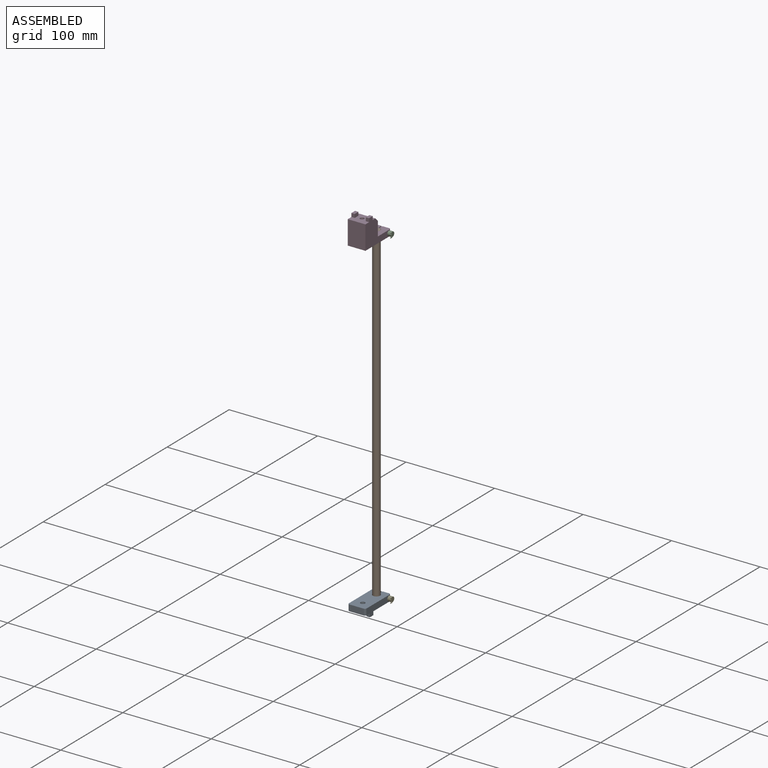
[diagram: assembled view]
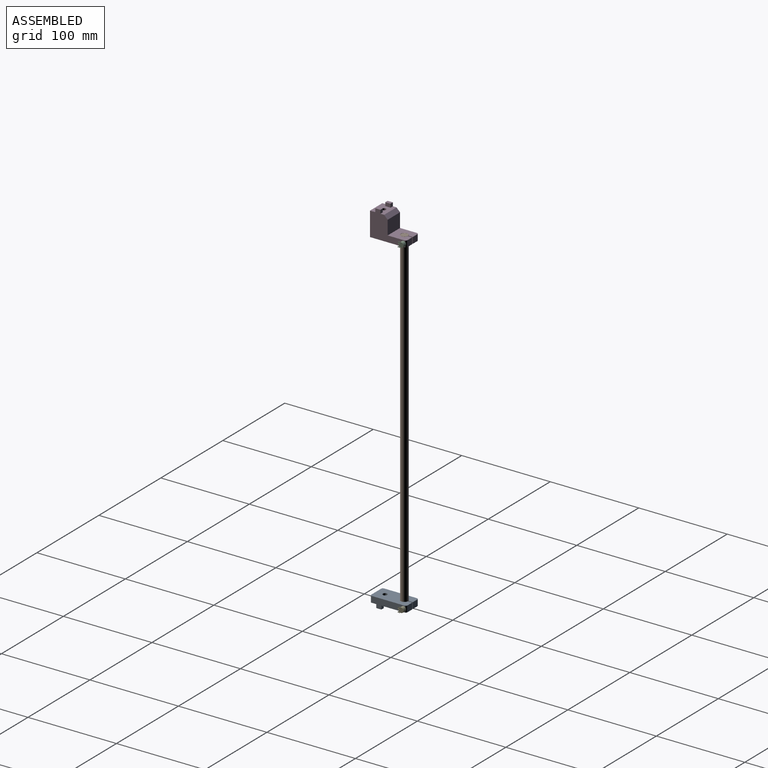
[diagram: assembled view, second angle]
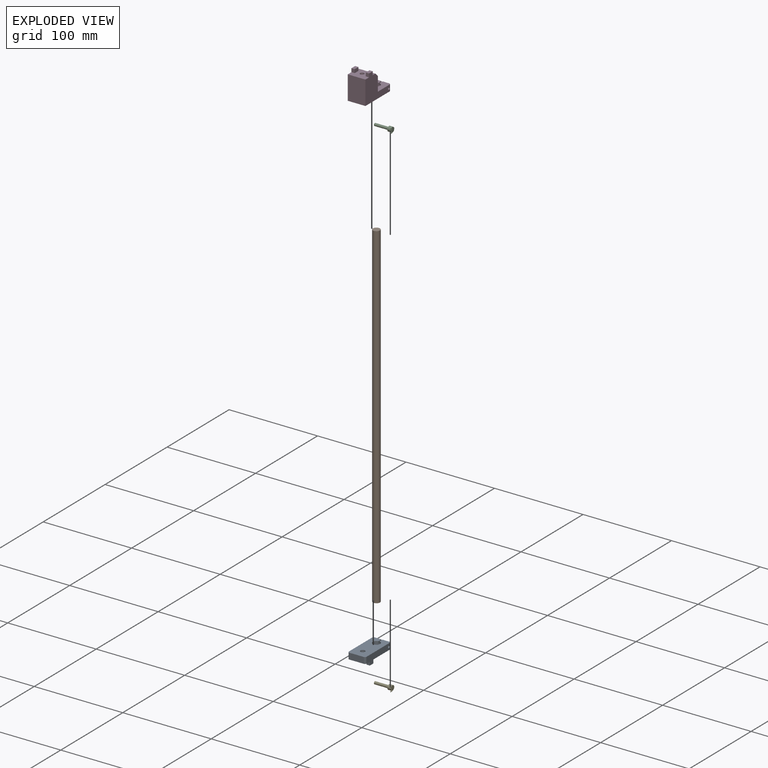
[diagram: exploded view]
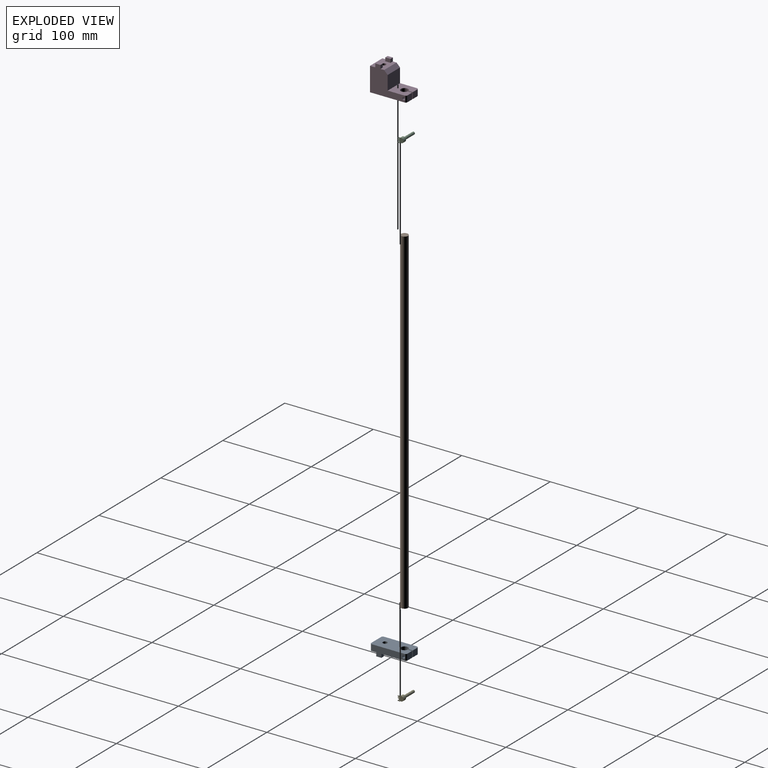
[diagram: exploded view, second angle]
ASSEMBLY  parts=5 mates=4
PART A: 25 faces, bbox 20x41x11 mm
  f0: plane 41x20mm, normal (0,0,1), area 694.2mm2, adj f1,f2,f3,f4,f5,f6,f7,f8
  f1: plane 16x7mm, normal (0,1,0), area 112mm2, adj f0,f10,f21,f24
  f2: plane 37x11mm, normal (-1,0,0), area 276.4mm2, adj f0,f10,f11,f13,f14,f20,f21,f22
  f3: plane 7.5x7mm, normal (0,-1,0), area 52.5mm2, adj f0,f4,f10,f22
  f4: plane 7x4.88mm, normal (1,0,0), area 27.6mm2, adj f0,f3,f5,f10,f20
  f5: cylinder r=4.15mm len=8.3mm, axis (0,0,-1), area 175.5mm2, adj f0,f4,f6,f10
  f6: plane 7x4.88mm, normal (-1,0,0), area 27.6mm2, adj f0,f5,f7,f10,f19
  f7: plane 7.5x7mm, normal (0,-1,0), area 52.5mm2, adj f0,f6,f10,f23
  f8: cylinder r=2.52mm len=7mm, axis (0,0,-1), area 110.8mm2, adj f0,f10
  f9: plane 37x11mm, normal (1,0,0), area 276.4mm2, adj f0,f10,f15,f16,f18,f19,f23,f24
  f10: plane 41x20mm, normal (0,0,-1), area 737.7mm2, adj f1,f2,f3,f4,f5,f6,f7,f8
  f11: plane 4x3.75mm, normal (0,-1,0), area 15mm2, adj f0,f2,f12,f14
  f12: plane 5.8x4mm, normal (1,0,0), area 23.2mm2, adj f0,f11,f13,f14
  f13: plane 4x3.75mm, normal (0,1,0), area 15mm2, adj f0,f2,f12,f14
  f14: plane 5.8x3.75mm, normal (0,0,1), area 21.7mm2, adj f2,f11,f12,f13
  f15: plane 4x3.75mm, normal (0,-1,0), area 15mm2, adj f0,f9,f17,f18
  f16: plane 4x3.75mm, normal (0,1,0), area 15mm2, adj f0,f9,f17,f18
  f17: plane 5.8x4mm, normal (-1,0,0), area 23.2mm2, adj f0,f15,f16,f18
  f18: plane 5.8x3.75mm, normal (0,0,1), area 21.7mm2, adj f9,f15,f16,f17
  f19: cylinder r=1.45mm len=9.5mm, axis (1,0,0), area 86.5mm2, adj f6,f9,f23
  f20: cylinder r=1.45mm len=9.5mm, axis (1,0,0), area 86.5mm2, adj f2,f4,f22
  f21: cylinder r=2mm len=7mm, axis (0,0,-1), area 22mm2, adj f0,f1,f2,f10
  f22: cylinder r=2mm len=7mm, axis (0,0,1), area 21.2mm2, adj f0,f2,f3,f10,f20
  f23: cylinder r=2mm len=7mm, axis (0,0,-1), area 21.2mm2, adj f0,f7,f9,f10,f19
  f24: cylinder r=2mm len=7mm, axis (0,0,1), area 22mm2, adj f0,f1,f9,f10
PART B: 3 faces, bbox 8x8x380 mm
  f0: cylinder r=4mm len=380mm, axis (0,0,-1), area 9550.4mm2, adj f1,f2
  f1: plane 8x8mm, normal (0,0,1), area 50.3mm2, adj f0
  f2: plane 8x8mm, normal (0,0,-1), area 50.3mm2, adj f0
PART C: 79 faces, bbox 6x6.3x20.5 mm
  f0: plane 0.44x0.4mm, normal (0,0,1), area 0.1mm2, adj f2,f68,f69,f70,f71
  f1: plane 5.5x5.5mm, normal (0,0,1), area 21.8mm2, adj f2,f28,f29,f30,f35,f36,f37,f38
  f2: cylinder r=2.75mm len=5.5mm, axis (0,0,-1), area 69.1mm2, adj f0,f1,f3,f6,f51,f78
  f3: plane 5.5x5.5mm, normal (0,0,-1), area 16.7mm2, adj f2,f4
  f4: cylinder r=1.5mm len=16mm, axis (0,0,1), area 150.8mm2, adj f3,f5
  f5: plane 3x3mm, normal (0,0,-1), area 7.1mm2, adj f4
  f6: plane 2.26x1.46mm, normal (0,0,-1), area 1.5mm2, adj f2,f7,f8,f9,f10,f11,f12,f13
  f7: extruded ~0.5x0.35mm, area 0.2mm2, adj f6,f8,f33,f34
  f8: extruded ~0.5x0.38mm, area 0.2mm2, adj f6,f7,f9,f34
  f9: extruded ~0.54x0.5mm, area 0.3mm2, adj f6,f8,f10,f34
  f10: extruded ~0.72x0.5mm, area 0.4mm2, adj f6,f9,f11,f34
  f11: plane 0.5x0.32mm, normal (-0.83,-0.56,0), area 0.2mm2, adj f6,f10,f12,f34
  f12: extruded ~0.5x0.25mm, area 0.1mm2, adj f6,f11,f13,f34
  f13: extruded ~0.5x0.22mm, area 0.1mm2, adj f6,f12,f14,f34
  f14: extruded ~0.5x0.31mm, area 0.2mm2, adj f6,f13,f15,f34
  f15: extruded ~0.5x0.23mm, area 0.1mm2, adj f6,f14,f16,f34
  f16: extruded ~0.5x0.37mm, area 0.2mm2, adj f6,f15,f17,f34
  f17: plane 0.5x0.17mm, normal (0,1,0), area 0.1mm2, adj f6,f16,f18,f34
  f18: plane 0.5x0.36mm, normal (-1,0,0), area 0.2mm2, adj f6,f17,f19,f34
  f19: plane 0.5x0.17mm, normal (0,-1,0), area 0.1mm2, adj f6,f18,f20,f34
  f20: extruded ~0.5x0.4mm, area 0.2mm2, adj f6,f19,f21,f34
  f21: extruded ~0.5x0.22mm, area 0.1mm2, adj f6,f20,f22,f34
  f22: extruded ~0.5x0.25mm, area 0.1mm2, adj f6,f21,f23,f34
  f23: extruded ~0.5x0.34mm, area 0.2mm2, adj f6,f22,f24,f34
  f24: extruded ~0.5x0.3mm, area 0.2mm2, adj f6,f23,f25,f34
  f25: extruded ~0.5x0.28mm, area 0.2mm2, adj f6,f24,f26,f34
  f26: plane 0.5x0.4mm, normal (-1,0,0), area 0.2mm2, adj f6,f25,f27,f34
  f27: extruded ~0.63x0.5mm, area 0.3mm2, adj f6,f26,f28,f34
  f28: extruded ~0.66x0.5mm, area 0.3mm2, adj f1,f6,f27,f29,f34
  f29: extruded ~0.5x0.49mm, area 0.3mm2, adj f1,f28,f30,f34
  f30: extruded ~0.5x0.35mm, area 0.2mm2, adj f1,f6,f29,f31,f34
  f31: extruded ~0.5x0.4mm, area 0.2mm2, adj f6,f30,f32,f34
  f32: plane 0.5x0.01mm, normal (1,0,0), area 0mm2, adj f6,f31,f33,f34
  f33: extruded ~0.5x0.35mm, area 0.2mm2, adj f6,f7,f32,f34
  f34: plane 2.26x1.52mm, normal (0,0,1), area 1.8mm2, adj f7,f8,f9,f10,f11,f12,f13,f14
  f35: plane 0.5x0.38mm, normal (-1,0,0), area 0.2mm2, adj f1,f36,f38,f39
  f36: plane 0.81x0.5mm, normal (0,-1,0), area 0.4mm2, adj f1,f35,f37,f39
  f37: plane 0.5x0.38mm, normal (1,0,0), area 0.2mm2, adj f1,f36,f38,f39
  f38: plane 0.81x0.5mm, normal (0,1,0), area 0.4mm2, adj f1,f35,f37,f39
  f39: plane 0.81x0.38mm, normal (0,0,1), area 0.3mm2, adj f35,f36,f37,f38
  f40: plane 0.5x0.46mm, normal (0,-1,0), area 0.2mm2, adj f1,f41,f49,f50
  f41: plane 2.2x0.5mm, normal (1,0,0), area 1.1mm2, adj f1,f40,f42,f50,f51
  f42: plane 0.5x0.38mm, normal (0,1,0), area 0.2mm2, adj f41,f43,f50,f51
  f43: plane 0.71x0.56mm, normal (-0.62,0.78,0), area 0.5mm2, adj f42,f44,f50,f51
  f44: plane 0.5x0.28mm, normal (-0.78,-0.63,0), area 0.2mm2, adj f1,f43,f45,f50,f51
  f45: plane 0.5x0.25mm, normal (0.63,-0.78,0), area 0.2mm2, adj f1,f44,f46,f50,f51
  f46: extruded ~0.5x0.16mm, area 0.1mm2, adj f45,f47,f50,f51
  f47: plane 0.5x0.23mm, normal (-1,0.03,0), area 0.1mm2, adj f46,f48,f50,f51
  f48: plane 0.5x0.21mm, normal (-1,0.02,0), area 0.1mm2, adj f1,f47,f49,f50,f51
  f49: plane 1.27x0.5mm, normal (-1,0,0), area 0.6mm2, adj f1,f40,f48,f50
  f50: plane 2.2x1.09mm, normal (0,0,1), area 1.2mm2, adj f40,f41,f42,f43,f44,f45,f46,f47
  f51: plane 1.09x0.84mm, normal (0,0,-1), area 0.6mm2, adj f2,f41,f42,f43,f44,f45,f46,f47
  f52: extruded ~0.97x0.5mm, area 0.5mm2, adj f1,f53,f76,f77,f78
  f53: extruded ~0.52x0.5mm, area 0.3mm2, adj f1,f52,f54,f77
  f54: extruded ~0.5x0.33mm, area 0.2mm2, adj f1,f53,f55,f77
  f55: extruded ~0.5x0.42mm, area 0.2mm2, adj f1,f54,f56,f77
  f56: extruded ~0.55x0.5mm, area 0.3mm2, adj f1,f55,f57,f77,f78
  f57: extruded ~0.56x0.5mm, area 0.3mm2, adj f56,f58,f77,f78
  f58: extruded ~0.51x0.5mm, area 0.3mm2, adj f57,f59,f77,f78
  f59: extruded ~0.5x0.46mm, area 0.3mm2, adj f58,f60,f77,f78
  f60: extruded ~0.5x0.48mm, area 0.3mm2, adj f59,f61,f77,f78
  f61: plane 0.5x0.02mm, normal (0,1,0), area 0mm2, adj f60,f62,f77,f78
  f62: extruded ~0.5x0.4mm, area 0.2mm2, adj f61,f63,f77,f78
  f63: extruded ~0.5x0.23mm, area 0.2mm2, adj f62,f64,f77,f78
  f64: extruded ~0.5x0.39mm, area 0.2mm2, adj f63,f65,f77,f78
  f65: extruded ~0.5x0.26mm, area 0.1mm2, adj f64,f66,f77,f78
  f66: plane 0.5x0.37mm, normal (1,0,0), area 0.2mm2, adj f65,f67,f77,f78
  f67: extruded ~0.5x0.29mm, area 0.1mm2, adj f66,f76,f77,f78
  f68: extruded ~0.5x0.23mm, area 0.1mm2, adj f0,f69,f75,f77,f78
  f69: extruded ~0.5x0.24mm, area 0.1mm2, adj f0,f68,f70,f77
  f70: extruded ~0.5x0.3mm, area 0.2mm2, adj f0,f69,f71,f77
  f71: extruded ~0.5x0.21mm, area 0.1mm2, adj f0,f70,f72,f77,f78
  f72: extruded ~0.5x0.24mm, area 0.1mm2, adj f71,f73,f77,f78
  f73: extruded ~0.5x0.22mm, area 0.1mm2, adj f72,f74,f77,f78
  f74: extruded ~0.5x0.25mm, area 0.1mm2, adj f73,f75,f77,f78
  f75: extruded ~0.5x0.28mm, area 0.2mm2, adj f68,f74,f77,f78
  f76: extruded ~0.83x0.5mm, area 0.5mm2, adj f52,f67,f77,f78
  f77: plane 2.25x1.55mm, normal (0,0,1), area 2.1mm2, adj f52,f53,f54,f55,f56,f57,f58,f59
  f78: plane 2.22x1.55mm, normal (0,0,-1), area 1.5mm2, adj f2,f52,f56,f57,f58,f59,f60,f61
PART D: 29 faces, bbox 20x41x31 mm
  f0: plane 21x20mm, normal (0,0,1), area 359.3mm2, adj f1,f3,f4,f5,f6,f7,f8,f12
  f1: plane 39x31mm, normal (1,0,0), area 682.8mm2, adj f0,f2,f9,f10,f13,f14,f16,f21
  f2: plane 27x20mm, normal (0,1,0), area 540mm2, adj f1,f3,f9,f16
  f3: plane 39x31mm, normal (-1,0,0), area 682.8mm2, adj f0,f2,f9,f11,f12,f14,f16,f17
  f4: plane 7.5x7mm, normal (0,-1,0), area 52.5mm2, adj f0,f5,f9,f12
  f5: plane 7x4.88mm, normal (1,0,0), area 27.6mm2, adj f0,f4,f6,f9,f11
  f6: cylinder r=4.15mm len=8.3mm, axis (0,0,-1), area 175.5mm2, adj f0,f5,f7,f9
  f7: plane 7x4.88mm, normal (-1,0,0), area 27.6mm2, adj f0,f6,f8,f9,f10
  f8: plane 7.5x7mm, normal (0,-1,0), area 52.5mm2, adj f0,f7,f9,f13
  f9: plane 41x20mm, normal (0,0,-1), area 664.3mm2, adj f1,f2,f3,f4,f5,f6,f7,f8
  f10: cylinder r=1.45mm len=9.5mm, axis (1,0,0), area 86.5mm2, adj f1,f7,f13
  f11: cylinder r=1.45mm len=9.5mm, axis (1,0,0), area 86.5mm2, adj f3,f5,f12
  f12: cylinder r=2mm len=7mm, axis (0,0,1), area 21.2mm2, adj f0,f3,f4,f9,f11
  f13: cylinder r=2mm len=7mm, axis (0,0,-1), area 21.2mm2, adj f0,f1,f8,f9,f10
  f14: plane 20x16mm, normal (0,-1,0), area 320mm2, adj f0,f1,f3,f25
  f15: cylinder r=2.25mm len=4.5mm, axis (0,0,-1), area 56.5mm2, adj f16,f27
  f16: plane 20x16mm, normal (0,0,1), area 259.8mm2, adj f1,f2,f3,f15,f17,f18,f19,f21
  f17: plane 4x3.75mm, normal (0,1,0), area 15mm2, adj f3,f16,f18,f20
  f18: plane 5.9x4mm, normal (1,0,0), area 23.6mm2, adj f16,f17,f19,f20
  f19: plane 4x3.75mm, normal (0,-1,0), area 15mm2, adj f3,f16,f18,f20
  f20: plane 5.9x3.75mm, normal (0,0,1), area 22.1mm2, adj f3,f17,f18,f19
  f21: plane 4x3.75mm, normal (0,-1,0), area 15mm2, adj f1,f16,f22,f24
  f22: plane 5.9x4mm, normal (-1,0,0), area 23.6mm2, adj f16,f21,f23,f24
  f23: plane 4x3.75mm, normal (0,1,0), area 15mm2, adj f1,f16,f22,f24
  f24: plane 5.9x3.75mm, normal (0,0,1), area 22.1mm2, adj f1,f21,f22,f23
  f25: plane 20x4mm, normal (0,-0.71,0.71), area 113.1mm2, adj f1,f3,f14,f16
  f26: cylinder r=5.5mm len=21mm, axis (0,0,-1), area 725.7mm2, adj f9,f28
  f27: plane 7x7mm, normal (0,0,-1), area 22.6mm2, adj f15,f28
  f28: cone r=5.5mm half-angle=45deg, axis (0,0,-1), area 80mm2, adj f26,f27
PART E: same geometry as C
PLACE A rot(axis=(1,0,0),180deg) t=(68.67,74.18,-172.64)mm
PLACE B t=(71.03,65.18,-179.64)mm
PLACE C rot(axis=(0.71,0,0.71),180deg) t=(81.03,71.23,186.86)mm
PLACE D rot(axis=(0,0,1),180deg) t=(74.44,74.18,193.36)mm
PLACE E rot(axis=(0.71,0,0.71),180deg) t=(81.03,71.23,-186.14)mm
MATE fastened B.f0 <-> D.f6  axis (0,0,1) through (71.03,65.18,200.36)mm
MATE fastened B.f0 <-> A.f5  axis (0,0,-1) through (71.03,65.18,-179.64)mm
MATE fastened E.f2 <-> A.f19  axis (-1,0,0) through (81.03,71.23,-176.14)mm
MATE fastened C.f2 <-> D.f10  axis (-1,0,0) through (81.03,71.23,196.86)mm
